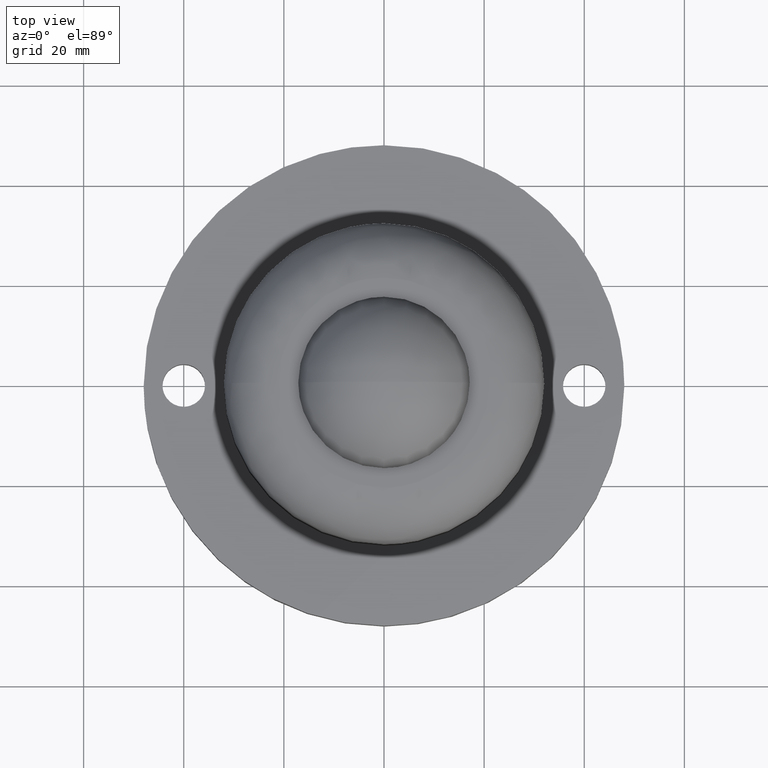
[diagram: clean part render]
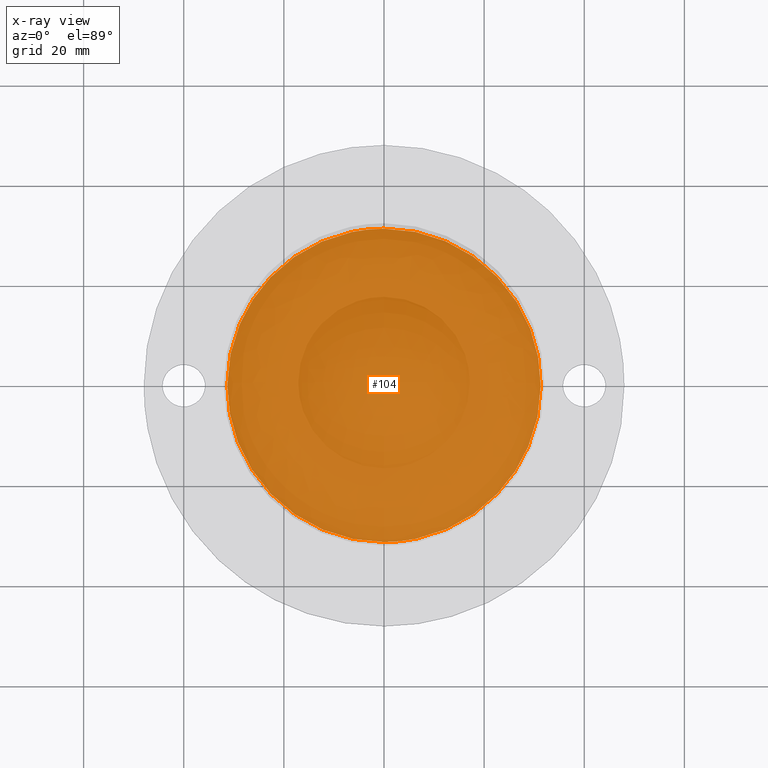
[diagram: x-ray — body ghosted, one internal face saturated and labeled with its STEP entity id]
A machine part, top view, then the same camera in x-ray: the body is ghosted and one INTERNAL B-rep face — a face not visible from any outside direction — is saturated and labeled: STEP entity #104.
In plain terms, the highlighted face is a freeform B-spline surface patch.
Its self-contained STEP definition (entity closure, byte-faithful):
#5=CARTESIAN_POINT('',(34.426869878669052,-34.426869878669017,10.0));
#6=CARTESIAN_POINT('',(-34.426871557731900,-34.426869878669017,10.0));
#7=CARTESIAN_POINT('',(34.426869878669052,34.426871557731872,10.0));
#8=CARTESIAN_POINT('',(-34.426871557731900,34.426871557731857,10.0));
#9=B_SPLINE_SURFACE_WITH_KNOTS('',1,1,((#5,#7),(#6,#8)),.UNSPECIFIED.,.F.,.F.,.U.,(2,2),(2,2),(0.0,68.853741436400952),(0.0,68.853741436400895),.UNSPECIFIED.);
#10=CARTESIAN_POINT('',(-0.000001210824431,-31.299999999999979,10.0));
#11=VERTEX_POINT('',#10);
#12=CARTESIAN_POINT('',(-31.300000000000001,0.0,10.0));
#13=VERTEX_POINT('',#12);
#14=CARTESIAN_POINT('',(-0.000001210824431,-31.299999999999979,10.0));
#15=CARTESIAN_POINT('',(-2.240667366863617,-31.300389897559999,10.000000000000030));
#16=CARTESIAN_POINT('',(-5.697463852646899,-30.927139093974858,9.999999999999984));
#17=CARTESIAN_POINT('',(-10.143545048219950,-29.681908894263731,9.999999999999986));
#18=CARTESIAN_POINT('',(-13.409715206936770,-28.352453422784851,9.999999999999993));
#19=CARTESIAN_POINT('',(-16.284000148448179,-26.793353830975040,9.999999999999968));
#20=CARTESIAN_POINT('',(-19.090656849787329,-24.880409412627550,10.0));
#21=CARTESIAN_POINT('',(-21.873576963033091,-22.509545282126190,10.000000000000099));
#22=CARTESIAN_POINT('',(-24.415859607910740,-19.704525338185601,10.000000000000020));
#23=CARTESIAN_POINT('',(-26.454819079609479,-16.828116246929650,9.999999999999965));
#24=CARTESIAN_POINT('',(-28.350485192868842,-13.482052939717191,10.000000000000091));
#25=CARTESIAN_POINT('',(-29.888759344676298,-9.669454016658529,9.999999999999973));
#26=CARTESIAN_POINT('',(-31.029757548451471,-4.929343788668816,10.000000000000011));
#27=CARTESIAN_POINT('',(-31.300154368333288,-1.792514122708809,10.0));
#28=CARTESIAN_POINT('',(-31.300000000000001,0.0,10.0));
#29=B_SPLINE_CURVE_WITH_KNOTS('',3,(#14,#15,#16,#17,#18,#19,#20,#21,#22,#23,#24,#25,#26,#27,#28),.UNSPECIFIED.,.F.,.U.,(4,1,1,1,1,1,1,1,1,1,1,1,4),(0.000000060611455,6.721890296114360,10.370949785225999,13.827941358763930,17.284931093986369,20.165744452968038,24.006874038217909,28.232037604584811,31.496947833556820,34.569841456164987,39.755334607428203,43.788475086800993,49.166001473304888),.UNSPECIFIED.);
#30=EDGE_CURVE('',#11,#13,#29,.T.);
#31=ORIENTED_EDGE('',*,*,#30,.F.);
#32=CARTESIAN_POINT('',(22.704217599521879,-21.545498004690629,10.0));
#33=VERTEX_POINT('',#32);
#34=CARTESIAN_POINT('',(22.704217599521879,-21.545498004690629,10.0));
#35=CARTESIAN_POINT('',(21.065269844696481,-23.273352719000520,10.000000000000011));
#36=CARTESIAN_POINT('',(17.849488902550210,-25.966806536847539,9.999999999999988));
#37=CARTESIAN_POINT('',(13.182352847422530,-28.502675698543982,10.0));
#38=CARTESIAN_POINT('',(9.335645608876085,-29.942682430951709,10.000000000000020));
#39=CARTESIAN_POINT('',(5.159778474520222,-30.996927369860359,9.999999999999895));
#40=CARTESIAN_POINT('',(1.984582674348636,-31.300250882623921,10.000000000000069));
#41=CARTESIAN_POINT('',(-0.000001210824431,-31.299999999999979,10.0));
#42=B_SPLINE_CURVE_WITH_KNOTS('',3,(#34,#35,#36,#37,#38,#39,#40,#41),.UNSPECIFIED.,.F.,.U.,(4,1,1,1,1,4),(0.000000018259332,7.144435913155924,12.502782886028520,15.876522200963681,19.448743582629309,25.402438245006810),.UNSPECIFIED.);
#43=EDGE_CURVE('',#33,#11,#42,.T.);
#44=ORIENTED_EDGE('',*,*,#43,.F.);
#45=CARTESIAN_POINT('',(31.300000000000001,0.0,10.0));
#46=VERTEX_POINT('',#45);
#47=CARTESIAN_POINT('',(31.300000000000001,0.0,10.0));
#48=CARTESIAN_POINT('',(31.300188835280899,-1.856538479148539,10.000000000000011));
#49=CARTESIAN_POINT('',(30.985217292033820,-5.383875745587164,10.0));
#50=CARTESIAN_POINT('',(29.733808550066058,-10.126071316529730,9.999999999999981));
#51=CARTESIAN_POINT('',(27.981234857316469,-14.232922656804771,10.000000000000060));
#52=CARTESIAN_POINT('',(25.729079222053080,-18.017511988665731,9.999999999999950));
#53=CARTESIAN_POINT('',(23.811851640317119,-20.378445744740390,10.000000000000011));
#54=CARTESIAN_POINT('',(22.704217599521879,-21.545498004690629,10.0));
#55=B_SPLINE_CURVE_WITH_KNOTS('',3,(#47,#48,#49,#50,#51,#52,#53,#54),.UNSPECIFIED.,.F.,.U.,(4,1,1,1,1,4),(0.000000016486897,5.569585111074041,10.582217178850730,14.666561505900059,18.936594990867128,23.763565141220539),.UNSPECIFIED.);
#56=EDGE_CURVE('',#46,#33,#55,.T.);
#57=ORIENTED_EDGE('',*,*,#56,.F.);
#58=CARTESIAN_POINT('',(0.000001210825767,31.299999999999979,10.0));
#59=VERTEX_POINT('',#58);
#60=CARTESIAN_POINT('',(0.000001210825767,31.299999999999979,10.0));
#61=CARTESIAN_POINT('',(1.280352291604527,31.300035765029801,9.999999999999982));
#62=CARTESIAN_POINT('',(3.841068398312499,31.142665043071251,10.000000000000020));
#63=CARTESIAN_POINT('',(7.813539829198850,30.403071341192220,10.000000000000011));
#64=CARTESIAN_POINT('',(12.327657779442241,28.927394665798449,9.999999999999963));
#65=CARTESIAN_POINT('',(16.658954551156508,26.663210531592100,10.000000000000060));
#66=CARTESIAN_POINT('',(20.403869631861909,23.849774847010639,10.000000000000041));
#67=CARTESIAN_POINT('',(23.755144799485361,20.579992536635441,10.000000000000011));
#68=CARTESIAN_POINT('',(26.409364884372788,17.024158696105179,9.999999999999963));
#69=CARTESIAN_POINT('',(28.403938460344861,13.292018517371931,10.000000000000011));
#70=CARTESIAN_POINT('',(29.771186241681399,9.903455690697237,9.999999999999986));
#71=CARTESIAN_POINT('',(30.959333811998551,5.505467420990244,10.000000000000020));
#72=CARTESIAN_POINT('',(31.300285000359182,2.048599277695883,9.999999999999989));
#73=CARTESIAN_POINT('',(31.300000000000001,0.0,10.0));
#74=B_SPLINE_CURVE_WITH_KNOTS('',3,(#60,#61,#62,#63,#64,#65,#66,#67,#68,#69,#70,#71,#72,#73),.UNSPECIFIED.,.F.,.U.,(4,1,1,1,1,1,1,1,1,1,1,4),(0.000000060609793,3.841055909608876,7.682184900065444,12.099445413169720,18.053142976677020,22.278358929846259,26.119427770394331,32.073112808276989,35.530113305567689,38.795051044390448,43.020260190558083,49.166001473304163),.UNSPECIFIED.);
#75=EDGE_CURVE('',#59,#46,#74,.T.);
#76=ORIENTED_EDGE('',*,*,#75,.F.);
#77=CARTESIAN_POINT('',(-22.704217599521630,21.545498004690408,10.0));
#78=VERTEX_POINT('',#77);
#79=CARTESIAN_POINT('',(-22.704217599521630,21.545498004690408,10.0));
#80=CARTESIAN_POINT('',(-21.793516321909522,22.505214586960609,10.0));
#81=CARTESIAN_POINT('',(-19.655889258067639,24.489371425608638,10.0));
#82=CARTESIAN_POINT('',(-16.335746803758070,26.803354290350839,10.000000000000011));
#83=CARTESIAN_POINT('',(-12.572438434120251,28.756374622815539,9.999999999999984));
#84=CARTESIAN_POINT('',(-8.587593522393295,30.219601194269782,10.000000000000060));
#85=CARTESIAN_POINT('',(-4.233728096630223,31.115221008019891,9.999999999999982));
#86=CARTESIAN_POINT('',(-1.323040384906204,31.300032752721059,10.000000000000030));
#87=CARTESIAN_POINT('',(0.000001210825767,31.299999999999979,10.0));
#88=B_SPLINE_CURVE_WITH_KNOTS('',3,(#79,#80,#81,#82,#83,#84,#85,#86,#87),.UNSPECIFIED.,.F.,.U.,(4,1,1,1,1,1,4),(0.000000018248777,3.969129882853217,8.732089267020289,12.105869170836330,16.670348996231720,21.433308380400629,25.402438245008060),.UNSPECIFIED.);
#89=EDGE_CURVE('',#78,#59,#88,.T.);
#90=ORIENTED_EDGE('',*,*,#89,.F.);
#91=CARTESIAN_POINT('',(-31.300000000000001,0.0,10.0));
#92=CARTESIAN_POINT('',(-31.300238374593071,1.980316894528892,9.999999999999996));
#93=CARTESIAN_POINT('',(-31.011208467477829,5.012543089906109,10.000000000000011));
#94=CARTESIAN_POINT('',(-29.964463473315149,9.285579648012723,9.999999999999979));
#95=CARTESIAN_POINT('',(-28.516894812505470,13.180351021957890,10.000000000000041));
#96=CARTESIAN_POINT('',(-26.147003493252949,17.475672064190469,9.999999999999906));
#97=CARTESIAN_POINT('',(-23.939664015818138,20.243794100263361,10.000000000000099));
#98=CARTESIAN_POINT('',(-22.704217599521630,21.545498004690408,10.0));
#99=B_SPLINE_CURVE_WITH_KNOTS('',3,(#91,#92,#93,#94,#95,#96,#97,#98),.UNSPECIFIED.,.F.,.U.,(4,1,1,1,1,4),(0.000000016490219,5.940891297675389,9.097003651813116,13.181347978848910,18.379634735334399,23.763565141220351),.UNSPECIFIED.);
#100=EDGE_CURVE('',#13,#78,#99,.T.);
#101=ORIENTED_EDGE('',*,*,#100,.F.);
#102=EDGE_LOOP('',(#31,#44,#57,#76,#90,#101));
#103=FACE_OUTER_BOUND('',#102,.T.);
#104=ADVANCED_FACE('',(#103),#9,.F.);